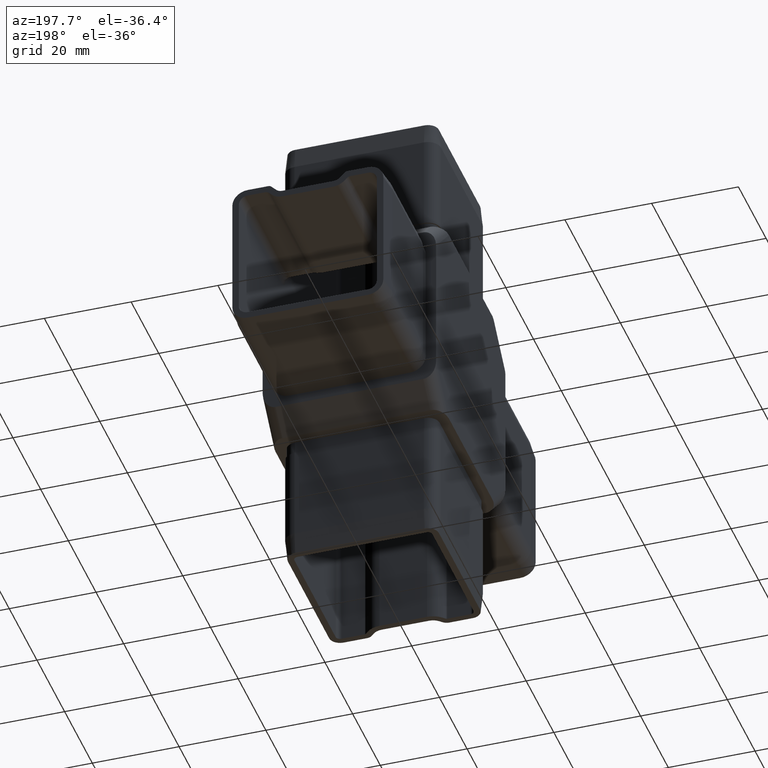
[diagram: clean part render]
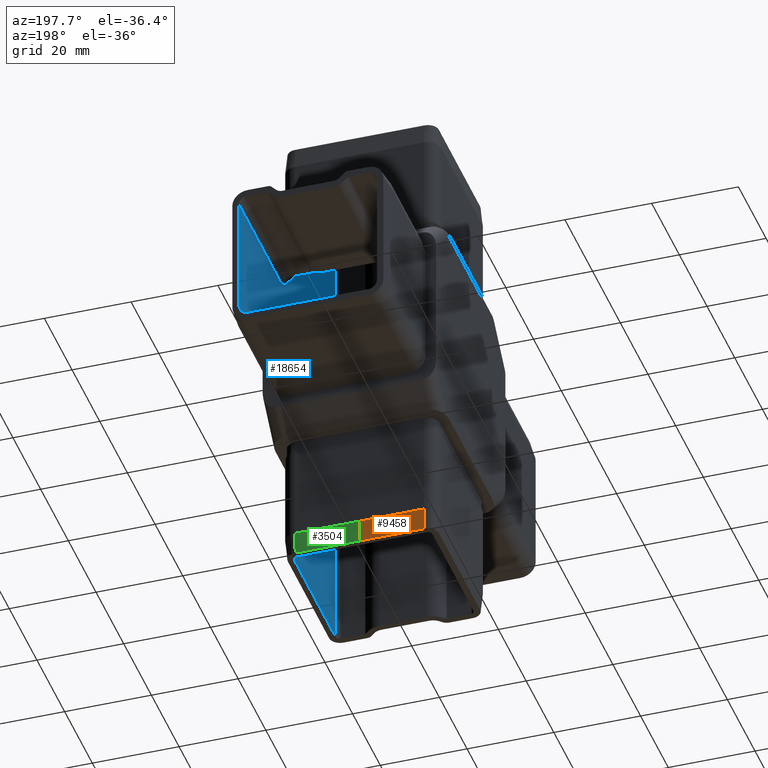
[diagram: same view with three faces highlighted in distinct colors, each labeled with its STEP entity id]
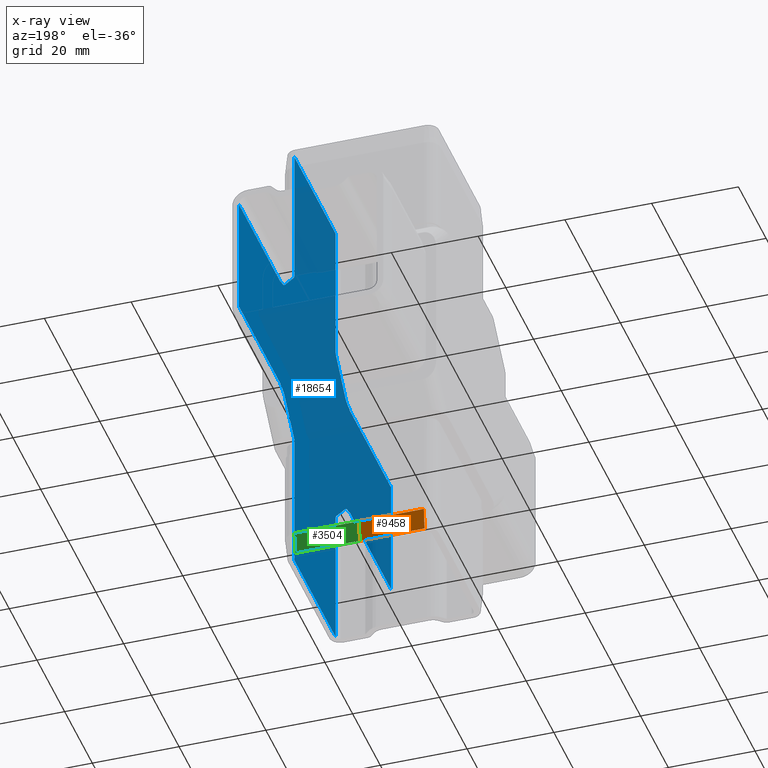
[diagram: x-ray of the same camera — body ghosted, the three highlighted faces saturated]
A machine part, auxiliary view with three faces highlighted in distinct colors.
The next image is the same camera in x-ray (body ghosted, the three faces saturated) — at least one of them is partly hidden behind the body in this view.
Their STEP definitions:

[orange] entity #9458 — the highlighted planar face has unit normal (-0, 0.995, -0.0995).
#101 = PLANE ( 'NONE',  #15162 ) ;
#1996 = DIRECTION ( 'NONE',  ( 1.000000000000000000, 2.328487887217189900E-016, 0.0000000000000000000 ) ) ;
#3198 = CARTESIAN_POINT ( 'NONE',  ( -14.90000000000000200, 17.39999999999997000, -55.00000000000000700 ) ) ;
#3705 = VERTEX_POINT ( 'NONE', #30706 ) ;
#4418 = ORIENTED_EDGE ( 'NONE', *, *, #26273, .T. ) ;
#5403 = EDGE_CURVE ( 'NONE', #24650, #30540, #15684, .T. ) ;
#5934 = VERTEX_POINT ( 'NONE', #28479 ) ;
#6283 = CARTESIAN_POINT ( 'NONE',  ( -14.90000000000000200, 17.39999999999997000, -55.00000000000000700 ) ) ;
#7516 = ORIENTED_EDGE ( 'NONE', *, *, #5403, .T. ) ;
#9170 = EDGE_CURVE ( 'NONE', #5934, #3705, #11417, .T. ) ;
#9458 = ADVANCED_FACE ( 'NONE', ( #26856 ), #101, .T. ) ;
#9762 = VECTOR ( 'NONE', #17904, 1000.000000000000200 ) ;
#9832 = DIRECTION ( 'NONE',  ( 0.0000000000000000000, 0.09950371902099902600, 0.9950371902099890400 ) ) ;
#10257 = ORIENTED_EDGE ( 'NONE', *, *, #16157, .F. ) ;
#10626 = CARTESIAN_POINT ( 'NONE',  ( 5.204170427930421300E-015, 17.89999999999996700, -50.00000000000000700 ) ) ;
#11417 = LINE ( 'NONE', #6283, #22706 ) ;
#14110 = CARTESIAN_POINT ( 'NONE',  ( 0.0000000000000000000, 17.39999999999997400, -55.00000000000000700 ) ) ;
#14362 = CARTESIAN_POINT ( 'NONE',  ( -14.90000000000000200, 17.39999999999997000, -55.00000000000000700 ) ) ;
#15162 = AXIS2_PLACEMENT_3D ( 'NONE', #14362, #31207, #9832 ) ;
#15637 = CARTESIAN_POINT ( 'NONE',  ( -14.90000000000000200, 17.89999999999996300, -50.00000000000000700 ) ) ;
#15684 = LINE ( 'NONE', #15637, #20577 ) ;
#16157 = EDGE_CURVE ( 'NONE', #3705, #30540, #22371, .T. ) ;
#16343 = CARTESIAN_POINT ( 'NONE',  ( 0.0000000000000000000, 17.73333333333330900, -51.66666666666667100 ) ) ;
#17904 = DIRECTION ( 'NONE',  ( 1.692096707582051000E-018, 0.09950371902099904000, 0.9950371902099890400 ) ) ;
#19217 = LINE ( 'NONE', #3198, #9762 ) ;
#20577 = VECTOR ( 'NONE', #30454, 1000.000000000000000 ) ;
#21795 = ORIENTED_EDGE ( 'NONE', *, *, #9170, .F. ) ;
#22371 = B_SPLINE_CURVE_WITH_KNOTS ( 'NONE', 3,
 ( #14110, #23382, #16343, #28124 ),
 .UNSPECIFIED., .F., .F.,
 ( 4, 4 ),
 ( 0.0000000000000000000, 1.000000000000000000 ),
 .UNSPECIFIED. ) ;
#22706 = VECTOR ( 'NONE', #1996, 1000.000000000000000 ) ;
#23382 = CARTESIAN_POINT ( 'NONE',  ( 0.0000000000000000000, 17.56666666666664200, -53.33333333333334300 ) ) ;
#24650 = VERTEX_POINT ( 'NONE', #31190 ) ;
#25672 = EDGE_LOOP ( 'NONE', ( #4418, #7516, #10257, #21795 ) ) ;
#26273 = EDGE_CURVE ( 'NONE', #5934, #24650, #19217, .T. ) ;
#26856 = FACE_OUTER_BOUND ( 'NONE', #25672, .T. ) ;
#28124 = CARTESIAN_POINT ( 'NONE',  ( 5.204170427930421300E-015, 17.89999999999996700, -50.00000000000000700 ) ) ;
#28479 = CARTESIAN_POINT ( 'NONE',  ( -14.90000000000000200, 17.39999999999997000, -55.00000000000000700 ) ) ;
#30454 = DIRECTION ( 'NONE',  ( 1.000000000000000000, 2.328487887217189900E-016, 0.0000000000000000000 ) ) ;
#30540 = VERTEX_POINT ( 'NONE', #10626 ) ;
#30706 = CARTESIAN_POINT ( 'NONE',  ( 0.0000000000000000000, 17.39999999999997400, -55.00000000000000700 ) ) ;
#31190 = CARTESIAN_POINT ( 'NONE',  ( -14.90000000000000200, 17.89999999999996300, -50.00000000000000700 ) ) ;
#31207 = DIRECTION ( 'NONE',  ( -2.316932044734587000E-016, 0.9950371902099891500, -0.09950371902099904000 ) ) ;

[blue] entity #18654 — the highlighted planar face has unit normal (1, 0, -0).
#6 = CARTESIAN_POINT ( 'NONE',  ( 15.89999999999999000, 55.00000000000000000, -13.89999999999997500 ) ) ;
#193 = CARTESIAN_POINT ( 'NONE',  ( 15.90000000000000400, -24.71454088845217000, -14.12673755991021800 ) ) ;
#281 = DIRECTION ( 'NONE',  ( -0.0000000000000000000, -0.0000000000000000000, -1.000000000000000000 ) ) ;
#292 = CARTESIAN_POINT ( 'NONE',  ( 15.89999999999999300, 14.89999999999997500, -55.00000000000000000 ) ) ;
#342 = VERTEX_POINT ( 'NONE', #16558 ) ;
#408 = CARTESIAN_POINT ( 'NONE',  ( 15.90000000000000000, -23.58327936177636300, -14.30750608986685500 ) ) ;
#464 = VECTOR ( 'NONE', #24423, 1000.000000000000000 ) ;
#571 = CARTESIAN_POINT ( 'NONE',  ( 15.89999999999999700, -55.00000000000000000, 13.89999999999999900 ) ) ;
#603 = CARTESIAN_POINT ( 'NONE',  ( 15.89999999999999000, 22.64277123939863400, -14.65348718248758800 ) ) ;
#605 = CARTESIAN_POINT ( 'NONE',  ( 15.90000000000000000, -14.89999999999999000, 23.92304473782996500 ) ) ;
#676 = CARTESIAN_POINT ( 'NONE',  ( 15.89999999999999300, 14.89999999999997500, -55.00000000000000000 ) ) ;
#991 = CARTESIAN_POINT ( 'NONE',  ( 15.89999999999999700, 14.89999999999997700, 23.92304473782994700 ) ) ;
#1171 = CARTESIAN_POINT ( 'NONE',  ( 15.89999999999999300, 14.89999999999997500, 55.00000000000000000 ) ) ;
#1717 = ORIENTED_EDGE ( 'NONE', *, *, #25045, .F. ) ;
#1749 = B_SPLINE_CURVE_WITH_KNOTS ( 'NONE', 3,
 ( #24611, #10506, #15683, #15795, #18119, #991 ),
 .UNSPECIFIED., .F., .F.,
 ( 4, 2, 4 ),
 ( 0.0000000000000000000, 0.5000000000000000000, 1.000000000000000000 ),
 .UNSPECIFIED. ) ;
#1822 = FACE_OUTER_BOUND ( 'NONE', #29003, .T. ) ;
#2017 = B_SPLINE_CURVE_WITH_KNOTS ( 'NONE', 3,
 ( #28064, #8899, #16289, #6814, #18622, #13854, #9113, #30373, #8786, #25747 ),
 .UNSPECIFIED., .F., .F.,
 ( 4, 2, 2, 2, 4 ),
 ( 1.734723475976807100E-018, 0.0008546654666707930500, 0.001709330933341584400, 0.002563996400012375500, 0.003418661866683167000 ),
 .UNSPECIFIED. ) ;
#2354 = CARTESIAN_POINT ( 'NONE',  ( 15.90000000000000000, -23.03674972843854400, 14.47186193171289600 ) ) ;
#2441 = B_SPLINE_CURVE_WITH_KNOTS ( 'NONE', 3,
 ( #4410, #2452, #9469, #26518, #16747, #2354, #19273, #7255, #23786, #21591 ),
 .UNSPECIFIED., .F., .F.,
 ( 4, 2, 2, 2, 4 ),
 ( 0.0000000000000000000, 0.0008609205048127154400, 0.001721841009625430900, 0.002582761514438146400, 0.003443682019250861700 ),
 .UNSPECIFIED. ) ;
#2452 = CARTESIAN_POINT ( 'NONE',  ( 15.90000000000000400, -24.71454523952359100, 14.12673710448947200 ) ) ;
#2523 = LINE ( 'NONE', #571, #5975 ) ;
#2713 = CARTESIAN_POINT ( 'NONE',  ( 15.89999999999999300, 23.86318734014463800, -14.25105788959104600 ) ) ;
#2780 = DIRECTION ( 'NONE',  ( 1.471961680016035000E-016, -0.7071067811865455700, -0.7071067811865494600 ) ) ;
#2802 = B_SPLINE_CURVE_WITH_KNOTS ( 'NONE', 3,
 ( #10329, #10439, #17511, #2713, #29273, #22038, #12871, #7830, #603, #15185, #5192, #12454 ),
 .UNSPECIFIED., .F., .F.,
 ( 4, 2, 2, 2, 2, 4 ),
 ( 0.0000000000000000000, 0.0008609175498475845600, 0.001721835099695169100, 0.002152293874618956300, 0.002582752649542743600, 0.003443670199390320500 ),
 .UNSPECIFIED. ) ;
#2820 = EDGE_CURVE ( 'NONE', #18166, #17217, #10524, .T. ) ;
#2823 = CARTESIAN_POINT ( 'NONE',  ( 15.90000000000000400, -14.86184161423350300, 23.17677246786270800 ) ) ;
#2979 = EDGE_CURVE ( 'NONE', #23384, #9837, #20698, .T. ) ;
#3177 = CARTESIAN_POINT ( 'NONE',  ( 15.89999999999999300, 21.83762277913257300, 15.24278127157810700 ) ) ;
#3346 = EDGE_CURVE ( 'NONE', #18166, #21891, #2523, .T. ) ;
#3371 = EDGE_CURVE ( 'NONE', #8759, #17659, #9318, .T. ) ;
#3390 = LINE ( 'NONE', #292, #26433 ) ;
#3402 = CARTESIAN_POINT ( 'NONE',  ( 15.89999999999999000, 55.00000000000000000, -13.89999999999997500 ) ) ;
#3713 = VECTOR ( 'NONE', #25948, 1000.000000000000000 ) ;
#4000 = ORIENTED_EDGE ( 'NONE', *, *, #3346, .T. ) ;
#4125 = DIRECTION ( 'NONE',  ( -1.471961680016042900E-016, 0.7071067811865494600, -0.7071067811865455700 ) ) ;
#4162 = EDGE_CURVE ( 'NONE', #30011, #20629, #1749, .T. ) ;
#4410 = CARTESIAN_POINT ( 'NONE',  ( 15.90000000000000400, -25.00000000000000000, 14.09685894108430100 ) ) ;
#4966 = VERTEX_POINT ( 'NONE', #3177 ) ;
#5192 = CARTESIAN_POINT ( 'NONE',  ( 15.90000000000000400, 22.04251615882638000, -15.03788789188426600 ) ) ;
#5207 = VERTEX_POINT ( 'NONE', #12576 ) ;
#5266 = VERTEX_POINT ( 'NONE', #24764 ) ;
#5308 = ORIENTED_EDGE ( 'NONE', *, *, #11475, .T. ) ;
#5428 = EDGE_CURVE ( 'NONE', #18280, #21891, #21346, .T. ) ;
#5975 = VECTOR ( 'NONE', #10405, 1000.000000000000000 ) ;
#6002 = CARTESIAN_POINT ( 'NONE',  ( 15.90000000000000000, -15.27867965644036000, -21.80172439427028100 ) ) ;
#6199 = ORIENTED_EDGE ( 'NONE', *, *, #24762, .F. ) ;
#6276 = ORIENTED_EDGE ( 'NONE', *, *, #30666, .F. ) ;
#6423 = CARTESIAN_POINT ( 'NONE',  ( 15.89999999999999700, 25.00000000000000000, 13.89999999999999900 ) ) ;
#6439 = CARTESIAN_POINT ( 'NONE',  ( 15.89999999999999300, 14.95640229435172900, -22.12400205823587000 ) ) ;
#6459 = ORIENTED_EDGE ( 'NONE', *, *, #28026, .T. ) ;
#6814 = CARTESIAN_POINT ( 'NONE',  ( 15.89999999999999300, 22.76670036570161000, 14.58265065451715600 ) ) ;
#6921 = LINE ( 'NONE', #20532, #464 ) ;
#6955 = DIRECTION ( 'NONE',  ( -0.0000000000000000000, 0.0000000000000000000, -1.000000000000000000 ) ) ;
#7211 = ORIENTED_EDGE ( 'NONE', *, *, #3371, .F. ) ;
#7255 = CARTESIAN_POINT ( 'NONE',  ( 15.90000000000000400, -22.27035904041764200, 14.86632218869499900 ) ) ;
#7527 = CARTESIAN_POINT ( 'NONE',  ( 15.90000000000000400, -23.86326781590340900, -14.25104440522439500 ) ) ;
#7618 = CARTESIAN_POINT ( 'NONE',  ( 15.89999999999999700, -14.89999999999999300, 55.00000000000000000 ) ) ;
#7619 = EDGE_CURVE ( 'NONE', #13872, #17264, #27218, .T. ) ;
#7830 = CARTESIAN_POINT ( 'NONE',  ( 15.89999999999999000, 22.77296563225091600, -14.58970415842647700 ) ) ;
#8062 = CARTESIAN_POINT ( 'NONE',  ( 15.90000000000000000, -14.86184161423223300, -23.17677246786330200 ) ) ;
#8387 = DIRECTION ( 'NONE',  ( -0.0000000000000000000, -1.000000000000000000, -0.0000000000000000000 ) ) ;
#8759 = VERTEX_POINT ( 'NONE', #6002 ) ;
#8786 = CARTESIAN_POINT ( 'NONE',  ( 15.89999999999999300, 24.71454088845216300, 14.12673755991024500 ) ) ;
#8797 = ORIENTED_EDGE ( 'NONE', *, *, #12200, .T. ) ;
#8899 = CARTESIAN_POINT ( 'NONE',  ( 15.89999999999999300, 22.04255200845793500, 15.03785204225274100 ) ) ;
#9113 = CARTESIAN_POINT ( 'NONE',  ( 15.89999999999999300, 23.86326781590339500, 14.25104440522442500 ) ) ;
#9161 = CARTESIAN_POINT ( 'NONE',  ( 15.89999999999999300, 14.89999994927106100, -23.53880389146838700 ) ) ;
#9162 = CARTESIAN_POINT ( 'NONE',  ( 15.90000000000000000, -14.89999999999999000, 23.92304473782996500 ) ) ;
#9318 = B_SPLINE_CURVE_WITH_KNOTS ( 'NONE', 3,
 ( #26699, #21969, #26808, #8062, #22678, #17646 ),
 .UNSPECIFIED., .F., .F.,
 ( 4, 2, 4 ),
 ( 0.0000000000000000000, 0.5000000000000000000, 1.000000000000000000 ),
 .UNSPECIFIED. ) ;
#9408 = CARTESIAN_POINT ( 'NONE',  ( 15.89999999999999000, 25.00000000000000000, -13.89999999999997500 ) ) ;
#9469 = CARTESIAN_POINT ( 'NONE',  ( 15.90000000000000700, -24.42915851220988100, 14.16073201508868000 ) ) ;
#9668 = VECTOR ( 'NONE', #4125, 1000.000000000000200 ) ;
#9681 = CARTESIAN_POINT ( 'NONE',  ( 15.89999999999999700, 14.89999999999997700, -23.92304473782997600 ) ) ;
#9696 = CARTESIAN_POINT ( 'NONE',  ( 15.89999999999999300, 25.00000000000000000, 25.00000000000000000 ) ) ;
#9722 = VECTOR ( 'NONE', #27259, 1000.000000000000000 ) ;
#9792 = ORIENTED_EDGE ( 'NONE', *, *, #2979, .T. ) ;
#9831 = CARTESIAN_POINT ( 'NONE',  ( 15.90000000000000400, -24.42912689670484000, -14.16073763960291700 ) ) ;
#9837 = VERTEX_POINT ( 'NONE', #6423 ) ;
#9939 = CARTESIAN_POINT ( 'NONE',  ( 15.90000000000000400, -22.42944307100135500, -14.65096097970932700 ) ) ;
#10025 = CARTESIAN_POINT ( 'NONE',  ( 15.90000000000000000, -15.27867965644034200, 21.80172439427033000 ) ) ;
#10033 = CARTESIAN_POINT ( 'NONE',  ( 15.90000000000000400, -21.83762277913259500, -15.24278127157808200 ) ) ;
#10108 = DIRECTION ( 'NONE',  ( 0.0000000000000000000, 0.0000000000000000000, -1.000000000000000000 ) ) ;
#10329 = CARTESIAN_POINT ( 'NONE',  ( 15.89999999999999300, 25.00000000000000000, -14.09685894108428400 ) ) ;
#10405 = DIRECTION ( 'NONE',  ( -0.0000000000000000000, 1.000000000000000000, -0.0000000000000000000 ) ) ;
#10439 = CARTESIAN_POINT ( 'NONE',  ( 15.89999999999999700, 24.71454573782892800, -14.12673705233251200 ) ) ;
#10506 = CARTESIAN_POINT ( 'NONE',  ( 15.89999999999999700, 14.95640229435250200, 22.12400205823760000 ) ) ;
#10524 = LINE ( 'NONE', #26052, #3713 ) ;
#10581 = EDGE_CURVE ( 'NONE', #14923, #23870, #3390, .T. ) ;
#10905 = VECTOR ( 'NONE', #20586, 1000.000000000000000 ) ;
#10954 = CARTESIAN_POINT ( 'NONE',  ( 15.89999999999999700, 14.89999999999997700, -23.92304473782997600 ) ) ;
#11338 = ORIENTED_EDGE ( 'NONE', *, *, #4162, .F. ) ;
#11430 = ORIENTED_EDGE ( 'NONE', *, *, #23758, .T. ) ;
#11475 = EDGE_CURVE ( 'NONE', #8759, #5266, #30083, .T. ) ;
#11706 = CARTESIAN_POINT ( 'NONE',  ( 15.89999999999999300, 25.00000000000000000, 25.00000000000000000 ) ) ;
#12123 = VERTEX_POINT ( 'NONE', #18329 ) ;
#12200 = EDGE_CURVE ( 'NONE', #5266, #12123, #15226, .T. ) ;
#12365 = DIRECTION ( 'NONE',  ( -2.496005001405480100E-016, -0.0000000000000000000, -1.000000000000000000 ) ) ;
#12454 = CARTESIAN_POINT ( 'NONE',  ( 15.89999999999999300, 21.83762277913254800, -15.24278127157809400 ) ) ;
#12488 = ORIENTED_EDGE ( 'NONE', *, *, #28169, .T. ) ;
#12576 = CARTESIAN_POINT ( 'NONE',  ( 15.90000000000000400, -21.83762277913252700, 15.24278127157811400 ) ) ;
#12871 = CARTESIAN_POINT ( 'NONE',  ( 15.89999999999999300, 23.03846799529704700, -14.47833873496243100 ) ) ;
#13188 = CARTESIAN_POINT ( 'NONE',  ( 15.89999999999999700, 14.89999999999997700, 23.92304473782994700 ) ) ;
#13273 = B_SPLINE_CURVE_WITH_KNOTS ( 'NONE', 3,
 ( #10954, #9161, #25787, #13692, #6439, #30419 ),
 .UNSPECIFIED., .F., .F.,
 ( 4, 2, 4 ),
 ( 0.0000000000000000000, 0.5000000000000000000, 1.000000000000000000 ),
 .UNSPECIFIED. ) ;
#13692 = CARTESIAN_POINT ( 'NONE',  ( 15.89999999999999300, 14.89579118641320600, -22.47283504181684700 ) ) ;
#13713 = CARTESIAN_POINT ( 'NONE',  ( 15.90000000000000000, -15.06996750391827300, 22.01043654679240900 ) ) ;
#13727 = ORIENTED_EDGE ( 'NONE', *, *, #16417, .T. ) ;
#13788 = LINE ( 'NONE', #3402, #16430 ) ;
#13807 = DIRECTION ( 'NONE',  ( 0.0000000000000000000, -0.0000000000000000000, 1.000000000000000000 ) ) ;
#13854 = CARTESIAN_POINT ( 'NONE',  ( 15.89999999999999700, 23.58327936177635600, 14.30750608986688000 ) ) ;
#13872 = VERTEX_POINT ( 'NONE', #9162 ) ;
#14028 = ORIENTED_EDGE ( 'NONE', *, *, #7619, .F. ) ;
#14156 = EDGE_CURVE ( 'NONE', #342, #21689, #13788, .T. ) ;
#14324 = ORIENTED_EDGE ( 'NONE', *, *, #14891, .T. ) ;
#14679 = CARTESIAN_POINT ( 'NONE',  ( 15.90000000000000700, -22.27037102951884900, -14.86632510646498400 ) ) ;
#14891 = EDGE_CURVE ( 'NONE', #18280, #5207, #2441, .T. ) ;
#14923 = VERTEX_POINT ( 'NONE', #19071 ) ;
#15057 = ORIENTED_EDGE ( 'NONE', *, *, #21774, .T. ) ;
#15185 = CARTESIAN_POINT ( 'NONE',  ( 15.89999999999999700, 22.27035766267067600, -14.86632179253861400 ) ) ;
#15226 = B_SPLINE_CURVE_WITH_KNOTS ( 'NONE', 3,
 ( #10033, #24251, #14679, #26884, #29281, #408, #7527, #9831, #193, #24554 ),
 .UNSPECIFIED., .F., .F.,
 ( 4, 2, 2, 2, 4 ),
 ( 0.0000000000000000000, 0.0008546654666707856800, 0.001709330933341571400, 0.002563996400012357200, 0.003418661866683142700 ),
 .UNSPECIFIED. ) ;
#15532 = CARTESIAN_POINT ( 'NONE',  ( 15.89999999999999300, 25.00000000000000000, -14.09685894108428400 ) ) ;
#15683 = CARTESIAN_POINT ( 'NONE',  ( 15.89999999999999700, 14.89579118641320900, 22.47283504181552200 ) ) ;
#15795 = CARTESIAN_POINT ( 'NONE',  ( 15.89999999999999700, 14.86184161423285300, 23.17677246786331900 ) ) ;
#16190 = CARTESIAN_POINT ( 'NONE',  ( 15.90000000000000400, -25.00000000000000000, 14.09685894108430100 ) ) ;
#16289 = CARTESIAN_POINT ( 'NONE',  ( 15.89999999999999700, 22.27037102951882400, 14.86632510646500900 ) ) ;
#16363 = VECTOR ( 'NONE', #13807, 1000.000000000000000 ) ;
#16417 = EDGE_CURVE ( 'NONE', #14923, #17659, #18418, .T. ) ;
#16430 = VECTOR ( 'NONE', #24801, 1000.000000000000000 ) ;
#16558 = CARTESIAN_POINT ( 'NONE',  ( 15.89999999999999000, 55.00000000000000000, -13.89999999999997500 ) ) ;
#16747 = CARTESIAN_POINT ( 'NONE',  ( 15.90000000000000400, -23.58319745643340700, 14.30753016719071100 ) ) ;
#17030 = CARTESIAN_POINT ( 'NONE',  ( 15.89999999999999000, -25.00000000000000000, -13.89999999999997500 ) ) ;
#17217 = VERTEX_POINT ( 'NONE', #27470 ) ;
#17264 = VERTEX_POINT ( 'NONE', #18228 ) ;
#17311 = CARTESIAN_POINT ( 'NONE',  ( 15.89999999999999700, -25.00000000000000000, 13.89999999999999900 ) ) ;
#17388 = EDGE_CURVE ( 'NONE', #27409, #342, #27499, .T. ) ;
#17511 = CARTESIAN_POINT ( 'NONE',  ( 15.89999999999999300, 24.42916287269287800, -14.16073125710847300 ) ) ;
#17646 = CARTESIAN_POINT ( 'NONE',  ( 15.90000000000000000, -14.89999999999999700, -23.92304473782993300 ) ) ;
#17659 = VERTEX_POINT ( 'NONE', #30762 ) ;
#17792 = CARTESIAN_POINT ( 'NONE',  ( 15.89999999999999300, 14.89999999999997500, 55.00000000000000000 ) ) ;
#17956 = VECTOR ( 'NONE', #21008, 1000.000000000000000 ) ;
#17965 = LINE ( 'NONE', #13713, #30756 ) ;
#18098 = LINE ( 'NONE', #1171, #10905 ) ;
#18119 = CARTESIAN_POINT ( 'NONE',  ( 15.89999999999999700, 14.89999994927106100, 23.53880389146739900 ) ) ;
#18166 = VERTEX_POINT ( 'NONE', #20426 ) ;
#18228 = CARTESIAN_POINT ( 'NONE',  ( 15.90000000000000000, -15.27867965644034200, 21.80172439427033000 ) ) ;
#18280 = VERTEX_POINT ( 'NONE', #16190 ) ;
#18329 = CARTESIAN_POINT ( 'NONE',  ( 15.90000000000000400, -25.00000000000000000, -14.09685894108427600 ) ) ;
#18418 = LINE ( 'NONE', #22113, #9722 ) ;
#18453 = VECTOR ( 'NONE', #24234, 1000.000000000000000 ) ;
#18489 = LINE ( 'NONE', #7618, #18453 ) ;
#18622 = CARTESIAN_POINT ( 'NONE',  ( 15.89999999999999300, 23.03668410482890700, 14.47188111269112000 ) ) ;
#18654 = ADVANCED_FACE ( 'NONE', ( #1822 ), #24020, .F. ) ;
#18703 = VECTOR ( 'NONE', #281, 1000.000000000000000 ) ;
#18779 = ORIENTED_EDGE ( 'NONE', *, *, #17388, .T. ) ;
#18912 = CARTESIAN_POINT ( 'NONE',  ( 15.89999999999999300, 14.89999999999997500, 55.00000000000000000 ) ) ;
#19071 = CARTESIAN_POINT ( 'NONE',  ( 15.89999999999999700, -14.89999999999999300, -55.00000000000000000 ) ) ;
#19273 = CARTESIAN_POINT ( 'NONE',  ( 15.90000000000000400, -22.76688661426219100, 14.58255397862849500 ) ) ;
#19941 = CARTESIAN_POINT ( 'NONE',  ( 15.90000000000000400, -14.89579118641258000, 22.47283504181619700 ) ) ;
#20001 = LINE ( 'NONE', #25364, #31240 ) ;
#20003 = ORIENTED_EDGE ( 'NONE', *, *, #10581, .F. ) ;
#20041 = CARTESIAN_POINT ( 'NONE',  ( 15.89999999999999300, 21.83762277913254800, -15.24278127157809400 ) ) ;
#20248 = ORIENTED_EDGE ( 'NONE', *, *, #2820, .F. ) ;
#20255 = ORIENTED_EDGE ( 'NONE', *, *, #30180, .F. ) ;
#20426 = CARTESIAN_POINT ( 'NONE',  ( 15.89999999999999700, -55.00000000000000000, 13.89999999999999900 ) ) ;
#20532 = CARTESIAN_POINT ( 'NONE',  ( 15.89999999999999300, 14.89999999999997500, -55.00000000000000000 ) ) ;
#20586 = DIRECTION ( 'NONE',  ( -1.164243943608596700E-016, 1.000000000000000000, -0.0000000000000000000 ) ) ;
#20629 = VERTEX_POINT ( 'NONE', #13188 ) ;
#20698 = LINE ( 'NONE', #11706, #26330 ) ;
#20753 = VECTOR ( 'NONE', #2780, 1000.000000000000200 ) ;
#20789 = DIRECTION ( 'NONE',  ( -1.471961680016035000E-016, 0.7071067811865455700, 0.7071067811865494600 ) ) ;
#21008 = DIRECTION ( 'NONE',  ( -0.0000000000000000000, 0.0000000000000000000, -1.000000000000000000 ) ) ;
#21346 = LINE ( 'NONE', #30775, #17956 ) ;
#21508 = LINE ( 'NONE', #26637, #20753 ) ;
#21591 = CARTESIAN_POINT ( 'NONE',  ( 15.90000000000000400, -21.83762277913252700, 15.24278127157811400 ) ) ;
#21689 = VERTEX_POINT ( 'NONE', #9408 ) ;
#21774 = EDGE_CURVE ( 'NONE', #24571, #21868, #2802, .T. ) ;
#21868 = VERTEX_POINT ( 'NONE', #20041 ) ;
#21891 = VERTEX_POINT ( 'NONE', #17311 ) ;
#21922 = DIRECTION ( 'NONE',  ( 1.000000000000000000, 2.081668171172168500E-016, -0.0000000000000000000 ) ) ;
#21969 = CARTESIAN_POINT ( 'NONE',  ( 15.90000000000000400, -14.95640229435368200, -22.12400205823926700 ) ) ;
#22019 = DIRECTION ( 'NONE',  ( -2.081668171172168500E-016, 1.000000000000000000, 0.0000000000000000000 ) ) ;
#22038 = CARTESIAN_POINT ( 'NONE',  ( 15.89999999999999700, 23.17336442209039400, -14.43077821266751200 ) ) ;
#22113 = CARTESIAN_POINT ( 'NONE',  ( 15.89999999999999700, -14.89999999999999300, -55.00000000000000000 ) ) ;
#22257 = CARTESIAN_POINT ( 'NONE',  ( 15.90000000000000700, -14.89999994927075400, 23.53880389146789700 ) ) ;
#22285 = ORIENTED_EDGE ( 'NONE', *, *, #14156, .T. ) ;
#22287 = VERTEX_POINT ( 'NONE', #9681 ) ;
#22482 = ORIENTED_EDGE ( 'NONE', *, *, #5428, .F. ) ;
#22528 = CARTESIAN_POINT ( 'NONE',  ( 15.89999999999999700, 15.27867965644032800, -21.80172439427034100 ) ) ;
#22620 = VERTEX_POINT ( 'NONE', #22528 ) ;
#22678 = CARTESIAN_POINT ( 'NONE',  ( 15.90000000000000400, -14.89999994927204300, -23.53880389146737800 ) ) ;
#22946 = DIRECTION ( 'NONE',  ( -0.0000000000000000000, 1.000000000000000000, -0.0000000000000000000 ) ) ;
#23384 = VERTEX_POINT ( 'NONE', #28895 ) ;
#23647 = EDGE_CURVE ( 'NONE', #25372, #12123, #26411, .T. ) ;
#23702 = VECTOR ( 'NONE', #26791, 1000.000000000000200 ) ;
#23758 = EDGE_CURVE ( 'NONE', #21868, #22620, #21508, .T. ) ;
#23781 = VECTOR ( 'NONE', #10108, 1000.000000000000000 ) ;
#23786 = CARTESIAN_POINT ( 'NONE',  ( 15.90000000000000400, -22.04251997118620600, 15.03788407952443300 ) ) ;
#23870 = VERTEX_POINT ( 'NONE', #676 ) ;
#24020 = PLANE ( 'NONE',  #26422 ) ;
#24131 = ORIENTED_EDGE ( 'NONE', *, *, #24510, .T. ) ;
#24228 = VECTOR ( 'NONE', #8387, 1000.000000000000000 ) ;
#24234 = DIRECTION ( 'NONE',  ( -0.0000000000000000000, -0.0000000000000000000, -1.000000000000000000 ) ) ;
#24251 = CARTESIAN_POINT ( 'NONE',  ( 15.90000000000000400, -22.04255200845796700, -15.03785204225271400 ) ) ;
#24423 = DIRECTION ( 'NONE',  ( -0.0000000000000000000, -0.0000000000000000000, 1.000000000000000000 ) ) ;
#24445 = DIRECTION ( 'NONE',  ( -1.164243943608596700E-016, 1.000000000000000000, 0.0000000000000000000 ) ) ;
#24510 = EDGE_CURVE ( 'NONE', #29826, #27170, #18098, .T. ) ;
#24554 = CARTESIAN_POINT ( 'NONE',  ( 15.90000000000000400, -25.00000000000000000, -14.09685894108427600 ) ) ;
#24571 = VERTEX_POINT ( 'NONE', #15532 ) ;
#24611 = CARTESIAN_POINT ( 'NONE',  ( 15.89999999999999700, 15.27867965644034100, 21.80172439427029800 ) ) ;
#24762 = EDGE_CURVE ( 'NONE', #29826, #13872, #18489, .T. ) ;
#24764 = CARTESIAN_POINT ( 'NONE',  ( 15.90000000000000400, -21.83762277913259500, -15.24278127157808200 ) ) ;
#24801 = DIRECTION ( 'NONE',  ( -0.0000000000000000000, -1.000000000000000000, -0.0000000000000000000 ) ) ;
#24824 = CARTESIAN_POINT ( 'NONE',  ( 15.90000000000000400, -25.00000000000000000, 25.00000000000000000 ) ) ;
#24911 = ORIENTED_EDGE ( 'NONE', *, *, #30813, .F. ) ;
#24999 = EDGE_CURVE ( 'NONE', #17217, #25372, #20001, .T. ) ;
#25045 = EDGE_CURVE ( 'NONE', #22287, #22620, #13273, .T. ) ;
#25051 = LINE ( 'NONE', #18912, #18703 ) ;
#25225 = ORIENTED_EDGE ( 'NONE', *, *, #24999, .F. ) ;
#25364 = CARTESIAN_POINT ( 'NONE',  ( 15.89999999999999000, -55.00000000000000000, -13.89999999999997500 ) ) ;
#25372 = VERTEX_POINT ( 'NONE', #17030 ) ;
#25545 = EDGE_CURVE ( 'NONE', #4966, #23384, #2017, .T. ) ;
#25698 = CARTESIAN_POINT ( 'NONE',  ( 15.89999999999999300, 25.00000000000000000, 25.00000000000000000 ) ) ;
#25747 = CARTESIAN_POINT ( 'NONE',  ( 15.89999999999999300, 25.00000000000000000, 14.09685894108432100 ) ) ;
#25787 = CARTESIAN_POINT ( 'NONE',  ( 15.89999999999999300, 14.86184161423285000, -23.17677246786207900 ) ) ;
#25934 = ORIENTED_EDGE ( 'NONE', *, *, #25545, .T. ) ;
#25948 = DIRECTION ( 'NONE',  ( -2.496005001405480100E-016, 0.0000000000000000000, -1.000000000000000000 ) ) ;
#26052 = CARTESIAN_POINT ( 'NONE',  ( 15.89999999999999000, -55.00000000000000000, -13.89999999999997500 ) ) ;
#26151 = CARTESIAN_POINT ( 'NONE',  ( 15.89999999999999700, -14.89999999999999300, 55.00000000000000000 ) ) ;
#26330 = VECTOR ( 'NONE', #6955, 1000.000000000000000 ) ;
#26411 = LINE ( 'NONE', #24824, #23781 ) ;
#26422 = AXIS2_PLACEMENT_3D ( 'NONE', #9696, #21922, #22019 ) ;
#26433 = VECTOR ( 'NONE', #24445, 1000.000000000000000 ) ;
#26518 = CARTESIAN_POINT ( 'NONE',  ( 15.90000000000000000, -23.86319600956725000, 14.25105644392790400 ) ) ;
#26637 = CARTESIAN_POINT ( 'NONE',  ( 15.89999999999999700, 15.06996750391823700, -22.01043654679244100 ) ) ;
#26699 = CARTESIAN_POINT ( 'NONE',  ( 15.90000000000000000, -15.27867965644036000, -21.80172439427028100 ) ) ;
#26791 = DIRECTION ( 'NONE',  ( 1.471961680016042900E-016, -0.7071067811865494600, 0.7071067811865455700 ) ) ;
#26808 = CARTESIAN_POINT ( 'NONE',  ( 15.90000000000000000, -14.89579118641387000, -22.47283504181550700 ) ) ;
#26884 = CARTESIAN_POINT ( 'NONE',  ( 15.90000000000000000, -22.76670036570162700, -14.58265065451714200 ) ) ;
#27146 = ORIENTED_EDGE ( 'NONE', *, *, #23647, .F. ) ;
#27170 = VERTEX_POINT ( 'NONE', #17792 ) ;
#27218 = B_SPLINE_CURVE_WITH_KNOTS ( 'NONE', 3,
 ( #605, #22257, #2823, #19941, #29276, #10025 ),
 .UNSPECIFIED., .F., .F.,
 ( 4, 2, 4 ),
 ( 0.0000000000000000000, 0.5000000000000000000, 1.000000000000000000 ),
 .UNSPECIFIED. ) ;
#27259 = DIRECTION ( 'NONE',  ( -0.0000000000000000000, -0.0000000000000000000, 1.000000000000000000 ) ) ;
#27409 = VERTEX_POINT ( 'NONE', #28609 ) ;
#27470 = CARTESIAN_POINT ( 'NONE',  ( 15.89999999999999000, -55.00000000000000000, -13.89999999999997500 ) ) ;
#27499 = LINE ( 'NONE', #6, #30882 ) ;
#27546 = CARTESIAN_POINT ( 'NONE',  ( 15.89999999999999700, 55.00000000000000000, 13.89999999999999900 ) ) ;
#27768 = ORIENTED_EDGE ( 'NONE', *, *, #28699, .T. ) ;
#28026 = EDGE_CURVE ( 'NONE', #30011, #4966, #28882, .T. ) ;
#28064 = CARTESIAN_POINT ( 'NONE',  ( 15.89999999999999300, 21.83762277913257300, 15.24278127157810700 ) ) ;
#28169 = EDGE_CURVE ( 'NONE', #5207, #17264, #17965, .T. ) ;
#28356 = CARTESIAN_POINT ( 'NONE',  ( 15.89999999999999300, 22.42944307100131600, 14.65096097970936400 ) ) ;
#28609 = CARTESIAN_POINT ( 'NONE',  ( 15.89999999999999700, 55.00000000000000000, 13.89999999999999900 ) ) ;
#28699 = EDGE_CURVE ( 'NONE', #27170, #20629, #25051, .T. ) ;
#28882 = LINE ( 'NONE', #28356, #9668 ) ;
#28895 = CARTESIAN_POINT ( 'NONE',  ( 15.89999999999999300, 25.00000000000000000, 14.09685894108432100 ) ) ;
#29003 = EDGE_LOOP ( 'NONE', ( #6459, #25934, #9792, #24911, #18779, #22285, #20255, #15057, #11430, #1717, #6276, #20003, #13727, #7211, #5308, #8797, #27146, #25225, #20248, #4000, #22482, #14324, #12488, #14028, #6199, #24131, #27768, #11338 ) ) ;
#29273 = CARTESIAN_POINT ( 'NONE',  ( 15.89999999999999300, 23.58318729371317300, -14.30753311821980300 ) ) ;
#29276 = CARTESIAN_POINT ( 'NONE',  ( 15.90000000000000700, -14.95640229435282700, 22.12400205823699300 ) ) ;
#29281 = CARTESIAN_POINT ( 'NONE',  ( 15.90000000000000400, -23.03668410482891100, -14.47188111269110100 ) ) ;
#29396 = CARTESIAN_POINT ( 'NONE',  ( 15.89999999999999700, 15.27867965644034100, 21.80172439427029800 ) ) ;
#29826 = VERTEX_POINT ( 'NONE', #26151 ) ;
#30011 = VERTEX_POINT ( 'NONE', #29396 ) ;
#30083 = LINE ( 'NONE', #9939, #23702 ) ;
#30180 = EDGE_CURVE ( 'NONE', #24571, #21689, #31026, .T. ) ;
#30373 = CARTESIAN_POINT ( 'NONE',  ( 15.89999999999999700, 24.42912689670482600, 14.16073763960294800 ) ) ;
#30419 = CARTESIAN_POINT ( 'NONE',  ( 15.89999999999999700, 15.27867965644032800, -21.80172439427034100 ) ) ;
#30636 = LINE ( 'NONE', #27546, #24228 ) ;
#30666 = EDGE_CURVE ( 'NONE', #23870, #22287, #6921, .T. ) ;
#30756 = VECTOR ( 'NONE', #20789, 1000.000000000000200 ) ;
#30762 = CARTESIAN_POINT ( 'NONE',  ( 15.90000000000000000, -14.89999999999999700, -23.92304473782993300 ) ) ;
#30775 = CARTESIAN_POINT ( 'NONE',  ( 15.90000000000000400, -25.00000000000000000, 25.00000000000000000 ) ) ;
#30813 = EDGE_CURVE ( 'NONE', #27409, #9837, #30636, .T. ) ;
#30882 = VECTOR ( 'NONE', #12365, 1000.000000000000000 ) ;
#31026 = LINE ( 'NONE', #25698, #16363 ) ;
#31240 = VECTOR ( 'NONE', #22946, 1000.000000000000000 ) ;

[green] entity #3504 — the highlighted planar face has unit normal (0, -0.995, 0.0995).
#1105 = CARTESIAN_POINT ( 'NONE',  ( 14.89999999999999300, 17.39999999999997400, -55.00000000000000700 ) ) ;
#3196 = AXIS2_PLACEMENT_3D ( 'NONE', #1105, #3365, #5078 ) ;
#3365 = DIRECTION ( 'NONE',  ( 0.0000000000000000000, -0.9950371902099891500, 0.09950371902099906800 ) ) ;
#3434 = ORIENTED_EDGE ( 'NONE', *, *, #10046, .F. ) ;
#3504 = ADVANCED_FACE ( 'NONE', ( #30828 ), #25014, .F. ) ;
#3616 = CARTESIAN_POINT ( 'NONE',  ( 14.89999999999999300, 17.39999999999997400, -55.00000000000000700 ) ) ;
#3705 = VERTEX_POINT ( 'NONE', #30706 ) ;
#5078 = DIRECTION ( 'NONE',  ( 0.0000000000000000000, -0.09950371902099905400, -0.9950371902099890400 ) ) ;
#6945 = EDGE_CURVE ( 'NONE', #20335, #3705, #10773, .T. ) ;
#9363 = EDGE_CURVE ( 'NONE', #27823, #30540, #29493, .T. ) ;
#10046 = EDGE_CURVE ( 'NONE', #20335, #27823, #26066, .T. ) ;
#10626 = CARTESIAN_POINT ( 'NONE',  ( 5.204170427930421300E-015, 17.89999999999996700, -50.00000000000000700 ) ) ;
#10773 = LINE ( 'NONE', #3616, #13374 ) ;
#13374 = VECTOR ( 'NONE', #22932, 1000.000000000000000 ) ;
#13956 = CARTESIAN_POINT ( 'NONE',  ( 14.89999999999999300, 17.39999999999997400, -55.00000000000000000 ) ) ;
#14110 = CARTESIAN_POINT ( 'NONE',  ( 0.0000000000000000000, 17.39999999999997400, -55.00000000000000700 ) ) ;
#16157 = EDGE_CURVE ( 'NONE', #3705, #30540, #22371, .T. ) ;
#16343 = CARTESIAN_POINT ( 'NONE',  ( 0.0000000000000000000, 17.73333333333330900, -51.66666666666667100 ) ) ;
#16718 = DIRECTION ( 'NONE',  ( 0.0000000000000000000, 0.09950371902099905400, 0.9950371902099890400 ) ) ;
#17113 = DIRECTION ( 'NONE',  ( -1.000000000000000000, -0.0000000000000000000, -0.0000000000000000000 ) ) ;
#17848 = EDGE_LOOP ( 'NONE', ( #23874, #22173, #3434, #22870 ) ) ;
#20335 = VERTEX_POINT ( 'NONE', #13956 ) ;
#21559 = VECTOR ( 'NONE', #16718, 1000.000000000000200 ) ;
#21560 = CARTESIAN_POINT ( 'NONE',  ( 14.89999999999999300, 17.39999999999997400, -55.00000000000000700 ) ) ;
#22173 = ORIENTED_EDGE ( 'NONE', *, *, #9363, .F. ) ;
#22363 = VECTOR ( 'NONE', #17113, 1000.000000000000000 ) ;
#22371 = B_SPLINE_CURVE_WITH_KNOTS ( 'NONE', 3,
 ( #14110, #23382, #16343, #28124 ),
 .UNSPECIFIED., .F., .F.,
 ( 4, 4 ),
 ( 0.0000000000000000000, 1.000000000000000000 ),
 .UNSPECIFIED. ) ;
#22870 = ORIENTED_EDGE ( 'NONE', *, *, #6945, .T. ) ;
#22932 = DIRECTION ( 'NONE',  ( -1.000000000000000000, -0.0000000000000000000, -0.0000000000000000000 ) ) ;
#23382 = CARTESIAN_POINT ( 'NONE',  ( 0.0000000000000000000, 17.56666666666664200, -53.33333333333334300 ) ) ;
#23874 = ORIENTED_EDGE ( 'NONE', *, *, #16157, .T. ) ;
#25014 = PLANE ( 'NONE',  #3196 ) ;
#26066 = LINE ( 'NONE', #21560, #21559 ) ;
#27823 = VERTEX_POINT ( 'NONE', #30246 ) ;
#28124 = CARTESIAN_POINT ( 'NONE',  ( 5.204170427930421300E-015, 17.89999999999996700, -50.00000000000000700 ) ) ;
#28174 = CARTESIAN_POINT ( 'NONE',  ( 14.89999999999999300, 17.89999999999997400, -50.00000000000000700 ) ) ;
#29493 = LINE ( 'NONE', #28174, #22363 ) ;
#30246 = CARTESIAN_POINT ( 'NONE',  ( 14.89999999999999300, 17.89999999999997400, -50.00000000000000700 ) ) ;
#30540 = VERTEX_POINT ( 'NONE', #10626 ) ;
#30706 = CARTESIAN_POINT ( 'NONE',  ( 0.0000000000000000000, 17.39999999999997400, -55.00000000000000700 ) ) ;
#30828 = FACE_OUTER_BOUND ( 'NONE', #17848, .T. ) ;